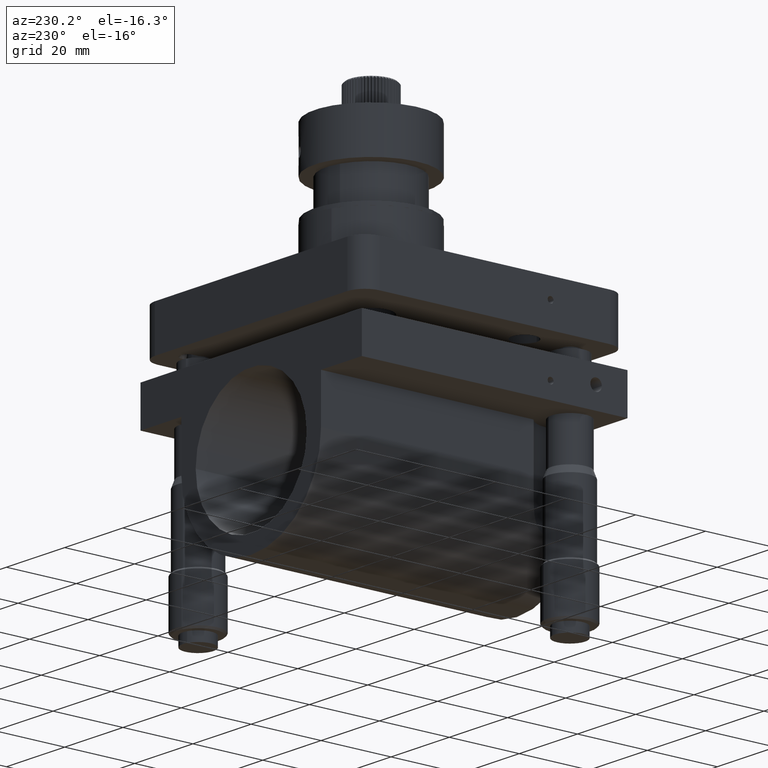
[diagram: clean part render]
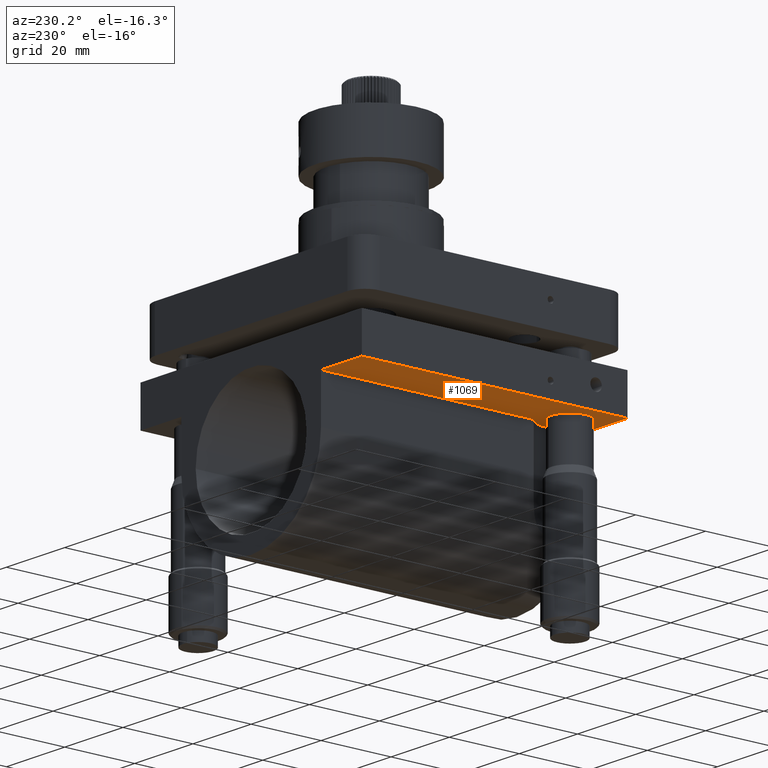
[diagram: same view with one face highlighted and labeled with its STEP entity id]
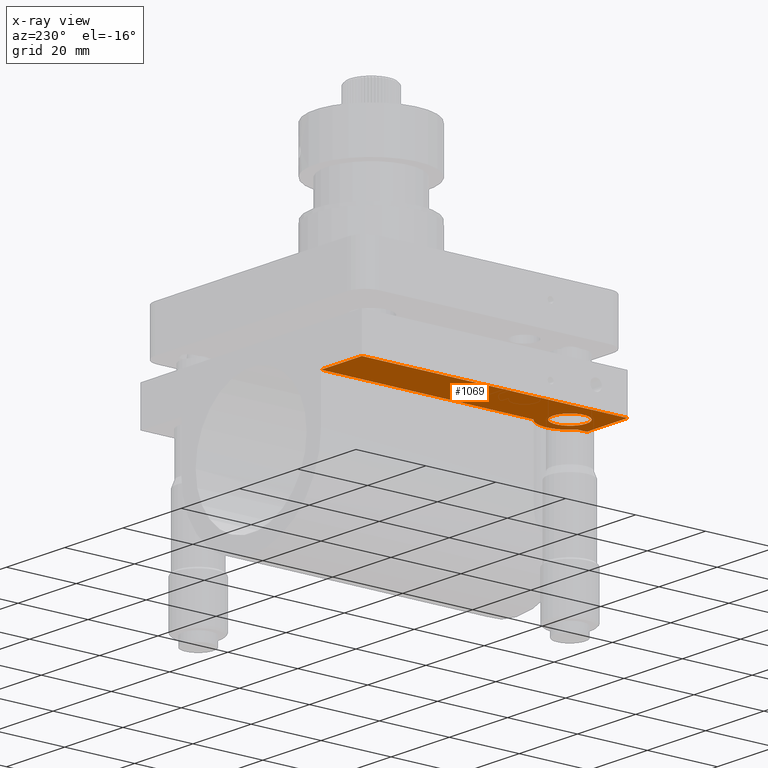
[diagram: x-ray of the same camera — body ghosted, the highlighted face saturated]
A machine part, auxiliary view. The second image highlights one B-rep face of the part: STEP entity #1069.
The next image is the same camera in x-ray: the body ghosted, the highlighted face saturated — about 0% of this face is hidden behind the body in this view.
In plain terms, the highlighted planar face has unit normal (0, -0, -1).
Its self-contained STEP definition (entity closure, byte-faithful):
#112 = DIRECTION ( 'NONE',  ( 3.975336354561381000E-015, -1.320038492901050100E-016, -1.000000000000000000 ) ) ;
#352 = VECTOR ( 'NONE', #3135, 1000.000000000000000 ) ;
#356 = EDGE_CURVE ( 'NONE', #10936, #8107, #7800, .T. ) ;
#457 = ORIENTED_EDGE ( 'NONE', *, *, #1479, .F. ) ;
#702 = CARTESIAN_POINT ( 'NONE',  ( -38.00000000000000700, 309.9999999999996600, 12.99999999999998900 ) ) ;
#703 = VERTEX_POINT ( 'NONE', #4689 ) ;
#741 = CIRCLE ( 'NONE', #8279, 4.799999999999998900 ) ;
#1069 = ADVANCED_FACE ( 'NONE', ( #5386, #7942 ), #11573, .T. ) ;
#1265 = LINE ( 'NONE', #5204, #352 ) ;
#1323 = EDGE_CURVE ( 'NONE', #10936, #3357, #6568, .T. ) ;
#1479 = EDGE_CURVE ( 'NONE', #3357, #703, #5955, .T. ) ;
#1492 = AXIS2_PLACEMENT_3D ( 'NONE', #8518, #12339, #5606 ) ;
#1830 = EDGE_CURVE ( 'NONE', #9213, #3796, #8363, .T. ) ;
#2081 = AXIS2_PLACEMENT_3D ( 'NONE', #8286, #12026, #8199 ) ;
#2158 = CARTESIAN_POINT ( 'NONE',  ( -23.99999999999993200, 249.2449979983982500, 13.00000000000002500 ) ) ;
#2267 = VECTOR ( 'NONE', #5276, 1000.000000000000000 ) ;
#2533 = DIRECTION ( 'NONE',  ( 8.022492494822361800E-016, -1.000000000000000000, 1.725221376346992100E-016 ) ) ;
#2566 = CARTESIAN_POINT ( 'NONE',  ( -38.00000000000000700, 309.9999999999996600, 12.99999999999998900 ) ) ;
#2790 = EDGE_LOOP ( 'NONE', ( #5035, #8173, #11971, #457, #6566, #6749 ) ) ;
#3135 = DIRECTION ( 'NONE',  ( 8.022492494822361800E-016, -1.000000000000000000, 1.725221376346992100E-016 ) ) ;
#3245 = ORIENTED_EDGE ( 'NONE', *, *, #1830, .F. ) ;
#3265 = DIRECTION ( 'NONE',  ( -1.025412375725082900E-017, -1.320038492901063100E-016, -1.000000000000000000 ) ) ;
#3302 = DIRECTION ( 'NONE',  ( 1.000000000000000000, 3.356086344444798100E-016, 3.975336354561381000E-015 ) ) ;
#3357 = VERTEX_POINT ( 'NONE', #6649 ) ;
#3394 = CIRCLE ( 'NONE', #1492, 7.999999999999979600 ) ;
#3513 = CARTESIAN_POINT ( 'NONE',  ( -28.99999999999992900, 247.8000000000001000, 13.00000000000001100 ) ) ;
#3796 = VERTEX_POINT ( 'NONE', #3513 ) ;
#4550 = CARTESIAN_POINT ( 'NONE',  ( -23.99999999999997900, 309.9999999999996600, 13.00000000000004800 ) ) ;
#4596 = VECTOR ( 'NONE', #7799, 1000.000000000000000 ) ;
#4689 = CARTESIAN_POINT ( 'NONE',  ( -23.99999999999995400, 233.9999999999998600, 13.00000000000008300 ) ) ;
#4724 = VECTOR ( 'NONE', #2533, 1000.000000000000000 ) ;
#4957 = CARTESIAN_POINT ( 'NONE',  ( -28.99999999999992200, 238.2000000000001000, 13.00000000000001100 ) ) ;
#5035 = ORIENTED_EDGE ( 'NONE', *, *, #12187, .T. ) ;
#5184 = CARTESIAN_POINT ( 'NONE',  ( -23.99999999999992500, 236.7550020016014400, 13.00000000000008300 ) ) ;
#5204 = CARTESIAN_POINT ( 'NONE',  ( -23.99999999999997900, 309.9999999999996600, 13.00000000000004800 ) ) ;
#5276 = DIRECTION ( 'NONE',  ( 1.000000000000000000, 3.356086344444798100E-016, 3.975336354561381000E-015 ) ) ;
#5386 = FACE_BOUND ( 'NONE', #10188, .T. ) ;
#5606 = DIRECTION ( 'NONE',  ( 8.673617379884057200E-016, -1.000000000000000000, 2.168404344971014300E-016 ) ) ;
#5818 = CARTESIAN_POINT ( 'NONE',  ( -23.99999999999997900, 309.9999999999996600, 13.00000000000004800 ) ) ;
#5955 = LINE ( 'NONE', #7718, #4596 ) ;
#6566 = ORIENTED_EDGE ( 'NONE', *, *, #1323, .F. ) ;
#6568 = LINE ( 'NONE', #702, #6873 ) ;
#6649 = CARTESIAN_POINT ( 'NONE',  ( -37.99999999999995000, 234.0000000000000900, 13.00000000000002000 ) ) ;
#6749 = ORIENTED_EDGE ( 'NONE', *, *, #356, .T. ) ;
#6873 = VECTOR ( 'NONE', #10197, 1000.000000000000000 ) ;
#7010 = LINE ( 'NONE', #4550, #4724 ) ;
#7020 = CARTESIAN_POINT ( 'NONE',  ( -28.99999999999992500, 243.0000000000001100, 13.00000000000001100 ) ) ;
#7130 = CARTESIAN_POINT ( 'NONE',  ( -23.99999999999997900, 309.9999999999996600, 13.00000000000004800 ) ) ;
#7246 = EDGE_CURVE ( 'NONE', #7862, #703, #1265, .T. ) ;
#7718 = CARTESIAN_POINT ( 'NONE',  ( -23.99999999999995400, 233.9999999999998600, 13.00000000000008300 ) ) ;
#7782 = CARTESIAN_POINT ( 'NONE',  ( -23.99999999999997900, 309.9999999999996600, 13.00000000000004800 ) ) ;
#7799 = DIRECTION ( 'NONE',  ( 1.000000000000000000, 3.356086344444798100E-016, 3.975336354561381000E-015 ) ) ;
#7800 = LINE ( 'NONE', #7130, #2267 ) ;
#7862 = VERTEX_POINT ( 'NONE', #5184 ) ;
#7942 = FACE_OUTER_BOUND ( 'NONE', #2790, .T. ) ;
#8107 = VERTEX_POINT ( 'NONE', #7782 ) ;
#8173 = ORIENTED_EDGE ( 'NONE', *, *, #12243, .T. ) ;
#8199 = DIRECTION ( 'NONE',  ( 7.228014483236697500E-016, -1.000000000000000000, 0.0000000000000000000 ) ) ;
#8279 = AXIS2_PLACEMENT_3D ( 'NONE', #7020, #3265, #11921 ) ;
#8286 = CARTESIAN_POINT ( 'NONE',  ( -28.99999999999992500, 243.0000000000001100, 13.00000000000001100 ) ) ;
#8363 = CIRCLE ( 'NONE', #2081, 4.799999999999998900 ) ;
#8497 = AXIS2_PLACEMENT_3D ( 'NONE', #5818, #112, #3302 ) ;
#8518 = CARTESIAN_POINT ( 'NONE',  ( -28.99999999999992500, 243.0000000000001100, 13.00000000000001100 ) ) ;
#8593 = ORIENTED_EDGE ( 'NONE', *, *, #10708, .F. ) ;
#9213 = VERTEX_POINT ( 'NONE', #4957 ) ;
#9645 = VERTEX_POINT ( 'NONE', #2158 ) ;
#10188 = EDGE_LOOP ( 'NONE', ( #3245, #8593 ) ) ;
#10197 = DIRECTION ( 'NONE',  ( 8.022492494822361800E-016, -1.000000000000000000, 1.725221376346992100E-016 ) ) ;
#10708 = EDGE_CURVE ( 'NONE', #3796, #9213, #741, .T. ) ;
#10936 = VERTEX_POINT ( 'NONE', #2566 ) ;
#11573 = PLANE ( 'NONE',  #8497 ) ;
#11921 = DIRECTION ( 'NONE',  ( 7.228014483236697500E-016, -1.000000000000000000, 0.0000000000000000000 ) ) ;
#11971 = ORIENTED_EDGE ( 'NONE', *, *, #7246, .T. ) ;
#12026 = DIRECTION ( 'NONE',  ( -1.025412375725082900E-017, -1.320038492901063100E-016, -1.000000000000000000 ) ) ;
#12187 = EDGE_CURVE ( 'NONE', #8107, #9645, #7010, .T. ) ;
#12243 = EDGE_CURVE ( 'NONE', #9645, #7862, #3394, .T. ) ;
#12339 = DIRECTION ( 'NONE',  ( -1.025412375725082900E-017, -1.320038492901063100E-016, -1.000000000000000000 ) ) ;